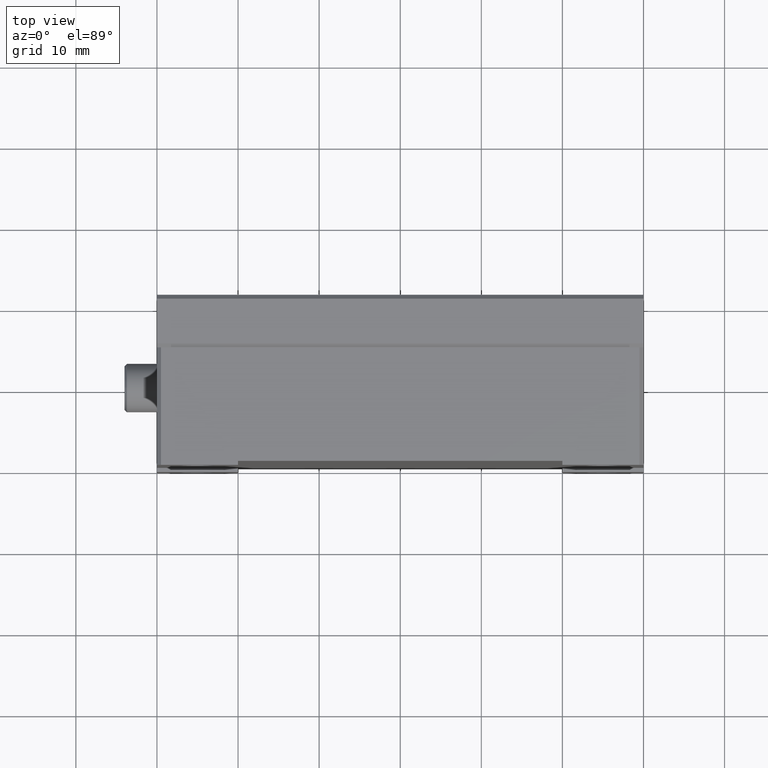
[diagram: clean part render]
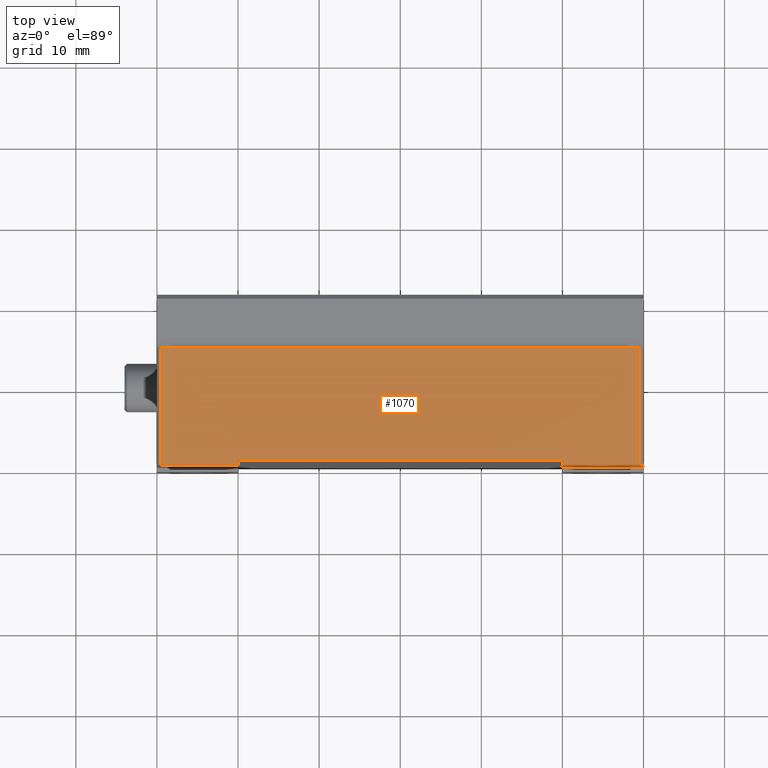
[diagram: same view with one face highlighted and labeled with its STEP entity id]
A machine part, top view. The second image highlights one B-rep face of the part: STEP entity #1070.
In plain terms, the highlighted planar face has unit normal (0, 0, -1).
Its self-contained STEP definition (entity closure, byte-faithful):
#20 = VERTEX_POINT ( 'NONE', #2515 ) ;
#189 = DIRECTION ( 'NONE',  ( -0.000000000000000000, -1.000000000000000000, -0.000000000000000000 ) ) ;
#254 = PLANE ( 'NONE',  #424 ) ;
#406 = DIRECTION ( 'NONE',  ( -1.000000000000000000, 0.000000000000000000, 0.000000000000000000 ) ) ;
#424 = AXIS2_PLACEMENT_3D ( 'NONE', #3388, #2841, #3436 ) ;
#432 = VECTOR ( 'NONE', #753, 1000.000000000000000 ) ;
#435 = LINE ( 'NONE', #2440, #2286 ) ;
#453 = CARTESIAN_POINT ( 'NONE',  ( 10.00000000000000000, 0.000000000000000000, 60.00000000000000000 ) ) ;
#487 = LINE ( 'NONE', #3328, #432 ) ;
#518 = EDGE_CURVE ( 'NONE', #1871, #1907, #487, .T. ) ;
#602 = VERTEX_POINT ( 'NONE', #3653 ) ;
#634 = CARTESIAN_POINT ( 'NONE',  ( 0.5000000000000000000, 14.50000000000000000, 60.00000000000000000 ) ) ;
#645 = LINE ( 'NONE', #2927, #894 ) ;
#693 = ORIENTED_EDGE ( 'NONE', *, *, #2305, .F. ) ;
#697 = ORIENTED_EDGE ( 'NONE', *, *, #774, .F. ) ;
#753 = DIRECTION ( 'NONE',  ( 0.000000000000000000, 1.000000000000000000, 0.000000000000000000 ) ) ;
#774 = EDGE_CURVE ( 'NONE', #3007, #602, #3488, .T. ) ;
#806 = VECTOR ( 'NONE', #3451, 1000.000000000000000 ) ;
#894 = VECTOR ( 'NONE', #2025, 1000.000000000000000 ) ;
#941 = ORIENTED_EDGE ( 'NONE', *, *, #1761, .F. ) ;
#958 = EDGE_CURVE ( 'NONE', #20, #3176, #435, .T. ) ;
#967 = ORIENTED_EDGE ( 'NONE', *, *, #958, .F. ) ;
#988 = CARTESIAN_POINT ( 'NONE',  ( 59.50000000000001421, -3.469446951953614189E-15, 60.00000000000000000 ) ) ;
#1047 = VECTOR ( 'NONE', #2008, 1000.000000000000000 ) ;
#1070 = ADVANCED_FACE ( 'NONE', ( #1859 ), #254, .F. ) ;
#1175 = CARTESIAN_POINT ( 'NONE',  ( 50.00000000000000000, 0.000000000000000000, 60.00000000000000000 ) ) ;
#1283 = VERTEX_POINT ( 'NONE', #453 ) ;
#1351 = VERTEX_POINT ( 'NONE', #2715 ) ;
#1477 = VECTOR ( 'NONE', #2690, 1000.000000000000000 ) ;
#1541 = EDGE_CURVE ( 'NONE', #1351, #1907, #3196, .T. ) ;
#1725 = LINE ( 'NONE', #2868, #1047 ) ;
#1737 = ORIENTED_EDGE ( 'NONE', *, *, #518, .F. ) ;
#1761 = EDGE_CURVE ( 'NONE', #1283, #3007, #3565, .T. ) ;
#1804 = EDGE_LOOP ( 'NONE', ( #3703, #1737, #2079, #967, #3654, #697, #941, #693 ) ) ;
#1859 = FACE_OUTER_BOUND ( 'NONE', #1804, .T. ) ;
#1871 = VERTEX_POINT ( 'NONE', #1175 ) ;
#1907 = VERTEX_POINT ( 'NONE', #2908 ) ;
#2008 = DIRECTION ( 'NONE',  ( 1.000000000000000000, -0.000000000000000000, -0.000000000000000000 ) ) ;
#2025 = DIRECTION ( 'NONE',  ( -0.000000000000000000, -1.000000000000000000, -0.000000000000000000 ) ) ;
#2079 = ORIENTED_EDGE ( 'NONE', *, *, #2788, .F. ) ;
#2286 = VECTOR ( 'NONE', #189, 1000.000000000000000 ) ;
#2305 = EDGE_CURVE ( 'NONE', #1351, #1283, #645, .T. ) ;
#2324 = DIRECTION ( 'NONE',  ( 0.000000000000000000, 1.000000000000000000, 0.000000000000000000 ) ) ;
#2431 = LINE ( 'NONE', #3551, #2731 ) ;
#2440 = CARTESIAN_POINT ( 'NONE',  ( 59.50000000000000711, 14.50000000000000000, 60.00000000000000000 ) ) ;
#2515 = CARTESIAN_POINT ( 'NONE',  ( 59.50000000000001421, 14.50000000000000000, 60.00000000000000000 ) ) ;
#2690 = DIRECTION ( 'NONE',  ( -1.000000000000000000, 0.000000000000000000, 0.000000000000000000 ) ) ;
#2715 = CARTESIAN_POINT ( 'NONE',  ( 10.00000000000000000, 0.5000000000000001110, 60.00000000000000000 ) ) ;
#2731 = VECTOR ( 'NONE', #406, 1000.000000000000000 ) ;
#2788 = EDGE_CURVE ( 'NONE', #3176, #1871, #2431, .T. ) ;
#2841 = DIRECTION ( 'NONE',  ( 0.000000000000000000, 0.000000000000000000, -1.000000000000000000 ) ) ;
#2868 = CARTESIAN_POINT ( 'NONE',  ( 0.5000000000000000000, 14.50000000000000000, 60.00000000000000000 ) ) ;
#2908 = CARTESIAN_POINT ( 'NONE',  ( 50.00000000000000000, 0.5000000000000002220, 60.00000000000000000 ) ) ;
#2927 = CARTESIAN_POINT ( 'NONE',  ( 10.00000000000000000, 14.50000000000000000, 60.00000000000000000 ) ) ;
#2978 = EDGE_CURVE ( 'NONE', #602, #20, #1725, .T. ) ;
#3007 = VERTEX_POINT ( 'NONE', #3129 ) ;
#3129 = CARTESIAN_POINT ( 'NONE',  ( 0.5000000000000000000, 0.000000000000000000, 60.00000000000000000 ) ) ;
#3176 = VERTEX_POINT ( 'NONE', #988 ) ;
#3196 = LINE ( 'NONE', #3220, #806 ) ;
#3220 = CARTESIAN_POINT ( 'NONE',  ( 0.000000000000000000, 0.5000000000000000000, 60.00000000000000000 ) ) ;
#3328 = CARTESIAN_POINT ( 'NONE',  ( 50.00000000000000000, 0.5000000000000000000, 60.00000000000000000 ) ) ;
#3388 = CARTESIAN_POINT ( 'NONE',  ( 0.5000000000000000000, 14.50000000000000000, 60.00000000000000000 ) ) ;
#3436 = DIRECTION ( 'NONE',  ( -1.000000000000000000, 0.000000000000000000, 0.000000000000000000 ) ) ;
#3451 = DIRECTION ( 'NONE',  ( 1.000000000000000000, -0.000000000000000000, -0.000000000000000000 ) ) ;
#3488 = LINE ( 'NONE', #634, #3710 ) ;
#3547 = CARTESIAN_POINT ( 'NONE',  ( 0.5000000000000000000, 0.000000000000000000, 60.00000000000000000 ) ) ;
#3551 = CARTESIAN_POINT ( 'NONE',  ( 0.5000000000000000000, 0.000000000000000000, 60.00000000000000000 ) ) ;
#3565 = LINE ( 'NONE', #3547, #1477 ) ;
#3653 = CARTESIAN_POINT ( 'NONE',  ( 0.5000000000000000000, 14.50000000000000000, 60.00000000000000000 ) ) ;
#3654 = ORIENTED_EDGE ( 'NONE', *, *, #2978, .F. ) ;
#3703 = ORIENTED_EDGE ( 'NONE', *, *, #1541, .T. ) ;
#3710 = VECTOR ( 'NONE', #2324, 1000.000000000000000 ) ;